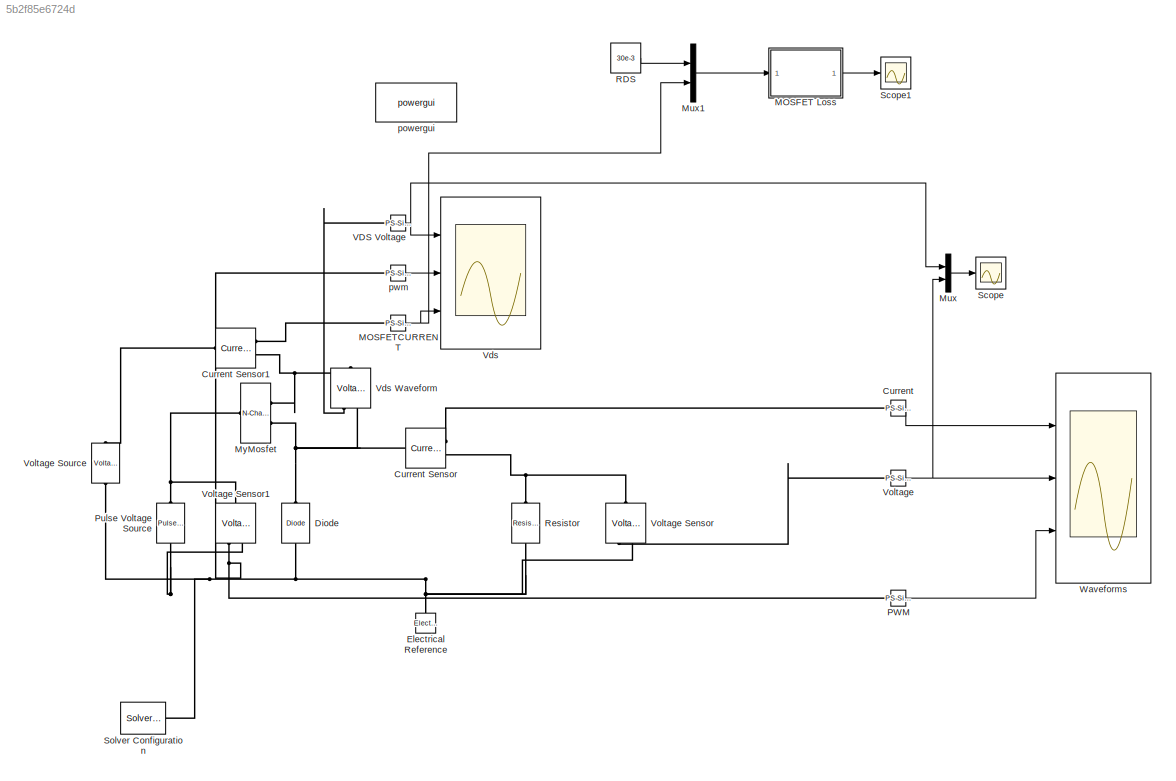
MODEL slx_5b2f85e6724d
KIND model
CONFIG AbsTol = auto
CONFIG EnableMultiTasking = off
CONFIG FixedStep = auto
CONFIG MaxStep = auto
CONFIG MinStep = auto
CONFIG RelTol = 1e-3
CONFIG SampleTimeConstraint = Unconstrained
CONFIG SolverName = VariableStepAuto
CONFIG StartTime = 0.0
CONFIG StopTime = 0.001
BLOCK [Reference] Current  REF=nesl_utility/PS-Simulink
Converter
  Ports = [0, 1, 0, 0, 0, 1]
  SourceBlock = nesl_utility/PS-Simulink\nConverter
  SourceProductBaseCode = PW,SS
  SourceType = PS-Simulink\nConverter
BLOCK [Reference] Current Sensor  REF=fl_lib/Electrical/Electrical Sensors/Current Sensor
  Ports = [0, 0, 0, 0, 0, 1, 2]
  SourceBlock = fl_lib/Electrical/Electrical Sensors/Current Sensor
  SourceProductBaseCode = SS
  SourceType = Current Sensor
BLOCK [Reference] Current Sensor1  REF=fl_lib/Electrical/Electrical Sensors/Current Sensor
  Ports = [0, 0, 0, 0, 0, 1, 2]
  SourceBlock = fl_lib/Electrical/Electrical Sensors/Current Sensor
  SourceProductBaseCode = SS
  SourceType = Current Sensor
BLOCK [Reference] Diode  REF=ee_lib/Semiconductors &
Converters/Diode
  NameLocation = right
  Ports = [0, 0, 0, 0, 0, 1, 1]
  SourceBlock = ee_lib/Semiconductors &\nConverters/Diode
  SourceProductBaseCode = PS
  SourceType = Diode
BLOCK [Reference] Electrical Reference  REF=fl_lib/Electrical/Electrical Elements/Electrical Reference
  NameLocation = right
  Ports = [0, 0, 0, 0, 0, 1]
  SourceBlock = fl_lib/Electrical/Electrical Elements/Electrical Reference
  SourceProductBaseCode = SS
  SourceType = Electrical Reference
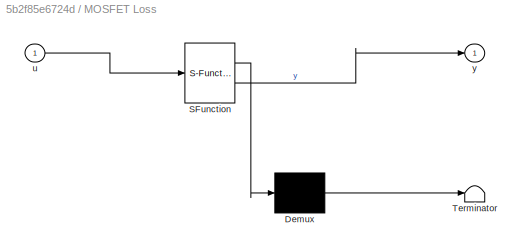
BLOCK [SubSystem] MOSFET Loss
  ErrorFcn = Stateflow.Translate.translate
  PermitHierarchicalResolution = ExplicitOnly
  Ports = [1, 1]
  RequestExecContextInheritance = off
  SFBlockType = MATLAB Function
  TreatAsAtomicUnit = on
BLOCK [Demux] MOSFET Loss/ Demux 
  Outputs = 1
  Ports = [1, 1]
BLOCK [S-Function] MOSFET Loss/ SFunction 
  EnableBusSupport = on
  FunctionName = sf_sfun
  PortCounts = [1 2]
  Ports = [1, 2]
  SFcnIsStateOwnerBlock = off
  SFunctionDeploymentMode = off
  Tag = Stateflow S-Function 2
BLOCK [Terminator] MOSFET Loss/ Terminator 
BLOCK [Inport] MOSFET Loss/u
BLOCK [Outport] MOSFET Loss/y
BLOCK [Reference] MOSFETCURRENT  REF=nesl_utility/PS-Simulink
Converter
  Ports = [0, 1, 0, 0, 0, 1]
  SourceBlock = nesl_utility/PS-Simulink\nConverter
  SourceProductBaseCode = PW,SS
  SourceType = PS-Simulink\nConverter
BLOCK [Mux] Mux
  DisplayOption = bar
  Inputs = 2
  Ports = [2, 1]
BLOCK [Mux] Mux1
  DisplayOption = bar
  Inputs = 2
  Ports = [2, 1]
BLOCK [Reference] MyMosfet  REF=ee_lib/Semiconductors &
Converters/N-Channel MOSFET
  Ports = [0, 0, 0, 0, 0, 1, 2]
  SourceBlock = ee_lib/Semiconductors &\nConverters/N-Channel MOSFET
  SourceProductBaseCode = PS
  SourceType = N-Channel MOSFET
BLOCK [Reference] PWM  REF=nesl_utility/PS-Simulink
Converter
  Ports = [0, 1, 0, 0, 0, 1]
  SourceBlock = nesl_utility/PS-Simulink\nConverter
  SourceProductBaseCode = PW,SS
  SourceType = PS-Simulink\nConverter
BLOCK [Reference] Pulse Voltage Source  REF=ee_lib/Additional
Components/SPICE Sources/Pulse Voltage Source
  NameLocation = right
  Ports = [0, 0, 0, 0, 0, 1, 1]
  SourceBlock = ee_lib/Additional\nComponents/SPICE Sources/Pulse Voltage Source
  SourceProductBaseCode = PS
  SourceType = Pulse Voltage Source
BLOCK [Constant] RDS
  Value = 30e-3
BLOCK [Reference] Resistor  REF=ee_lib/Passive/Resistor
  NameLocation = left
  Ports = [0, 0, 0, 0, 0, 1, 1]
  SourceBlock = ee_lib/Passive/Resistor
  SourceProductBaseCode = PS
  SourceType = Resistor
BLOCK [Scope] Scope
  Floating = off
  NumInputPorts = 1
  Ports = [1]
  ScopeSpecificationString = Simulink.scopes.TimeScopeBlockCfg('CurrentConfiguration', extmgr.ConfigurationSet(extmgr.Configuration('Core','General UI',true),extmgr.Configuration('Core','Source UI',true),extmgr.Configuration('Sources','WiredSimulink',true,'DataLoggingVariableName','ScopeData1'),extmgr.Configuration('Visuals','Time Domain',true,'SerializedDisplays',{struct('MinYLimReal','-3.15244','MaxYLimReal','23.15244','YLa...<+1841ch>
BLOCK [Scope] Scope1
  Floating = off
  NumInputPorts = 1
  Ports = [1]
  ScopeSpecificationString = Simulink.scopes.TimeScopeBlockCfg('CurrentConfiguration', extmgr.ConfigurationSet(extmgr.Configuration('Core','General UI',true),extmgr.Configuration('Core','Source UI',true),extmgr.Configuration('Sources','WiredSimulink',true,'DataLoggingVariableName','ScopeData2'),extmgr.Configuration('Visuals','Time Domain',true,'SerializedDisplays',{struct('MinYLimReal','-0.00496','MaxYLimReal','0.05867','YLab...<+1756ch>
BLOCK [Reference] Solver Configuration  REF=nesl_utility/Solver
Configuration
  Ports = [0, 0, 0, 0, 0, 0, 1]
  SourceBlock = nesl_utility/Solver\nConfiguration
  SourceProductBaseCode = PW,SS
  SourceType = Solver\nConfiguration
BLOCK [Reference] VDS  Voltage  REF=nesl_utility/PS-Simulink
Converter
  Ports = [0, 1, 0, 0, 0, 1]
  SourceBlock = nesl_utility/PS-Simulink\nConverter
  SourceProductBaseCode = PW,SS
  SourceType = PS-Simulink\nConverter
BLOCK [Scope] Vds
  Floating = off
  NumInputPorts = 3
  Ports = [3]
  ScopeSpecificationString = Simulink.scopes.TimeScopeBlockCfg('CurrentConfiguration', extmgr.ConfigurationSet(extmgr.Configuration('Core','General UI',true),extmgr.Configuration('Core','Source UI',true),extmgr.Configuration('Sources','WiredSimulink',true,'DataLoggingVariableName','ScopeData1'),extmgr.Configuration('Visuals','Time Domain',true,'SerializedDisplays',{struct('MinYLimReal','-2.50055','MaxYLimReal','22.50495','YLa...<+1925ch>
BLOCK [Reference] Vds Waveform  REF=fl_lib/Electrical/Electrical Sensors/Voltage Sensor
  NameLocation = right
  Ports = [0, 0, 0, 0, 0, 1, 2]
  SourceBlock = fl_lib/Electrical/Electrical Sensors/Voltage Sensor
  SourceProductBaseCode = SS
  SourceType = Voltage Sensor
BLOCK [Reference] Voltage  REF=nesl_utility/PS-Simulink
Converter
  Ports = [0, 1, 0, 0, 0, 1]
  SourceBlock = nesl_utility/PS-Simulink\nConverter
  SourceProductBaseCode = PW,SS
  SourceType = PS-Simulink\nConverter
BLOCK [Reference] Voltage Sensor  REF=fl_lib/Electrical/Electrical Sensors/Voltage Sensor
  NameLocation = right
  Ports = [0, 0, 0, 0, 0, 1, 2]
  SourceBlock = fl_lib/Electrical/Electrical Sensors/Voltage Sensor
  SourceProductBaseCode = SS
  SourceType = Voltage Sensor
BLOCK [Reference] Voltage Sensor1  REF=fl_lib/Electrical/Electrical Sensors/Voltage Sensor
  NameLocation = right
  Ports = [0, 0, 0, 0, 0, 1, 2]
  SourceBlock = fl_lib/Electrical/Electrical Sensors/Voltage Sensor
  SourceProductBaseCode = SS
  SourceType = Voltage Sensor
BLOCK [Reference] Voltage Source  REF=ee_lib/Sources/Voltage Source
  NameLocation = right
  Ports = [0, 0, 0, 0, 0, 1, 1]
  SourceBlock = ee_lib/Sources/Voltage Source
  SourceProductBaseCode = PS
  SourceType = Voltage Source
BLOCK [Scope] Waveforms
  Floating = off
  NumInputPorts = 3
  Ports = [3]
  ScopeSpecificationString = Simulink.scopes.TimeScopeBlockCfg('CurrentConfiguration', extmgr.ConfigurationSet(extmgr.Configuration('Core','General UI',true),extmgr.Configuration('Core','Source UI',true),extmgr.Configuration('Sources','WiredSimulink',true),extmgr.Configuration('Visuals','Time Domain',true,'SerializedDisplays',{struct('MinYLimReal','-1.27469','MaxYLimReal','6.25274','YLabelReal','','MinYLimMag','0.00000','MaxY...<+1878ch>
BLOCK [Reference] powergui  REF=spspowerguiLib/powergui
  Ports = []
  Priority = 1
  SourceBlock = spspowerguiLib/powergui
  SourceProductBaseCode = PS
  SourceType = PSB option menu block
BLOCK [Reference] pwm  REF=nesl_utility/PS-Simulink
Converter
  Ports = [0, 1, 0, 0, 0, 1]
  SourceBlock = nesl_utility/PS-Simulink\nConverter
  SourceProductBaseCode = PW,SS
  SourceType = PS-Simulink\nConverter
LINE Current:1 -> Waveforms:1
LINE MOSFET Loss:1 -> Scope1:1
NET MOSFETCURRENT:1 -> Mux1:2, Vds:3
LINE Mux1:1 -> MOSFET Loss:1
LINE Mux:1 -> Scope:1
LINE PWM:1 -> Waveforms:3
LINE RDS:1 -> Mux1:1
NET VDS  Voltage:1 -> Mux:1, Vds:1
NET Voltage:1 -> Mux:2, Waveforms:2
LINE pwm:1 -> Vds:2
PLINE Current Sensor1:LConn1 -- Voltage Source:LConn1
PLINE Current Sensor1:RConn1 -- MOSFETCURRENT:LConn1
PNET net1: Current Sensor1:RConn2 -- MyMosfet:RConn1 -- Vds Waveform:LConn1
PNET net2: Current Sensor:LConn1 -- Diode:RConn1 -- MyMosfet:RConn2 -- Vds Waveform:RConn2
PLINE Current Sensor:RConn1 -- Current:LConn1
PNET net3: Current Sensor:RConn2 -- Resistor:LConn1 -- Voltage Sensor:LConn1
PNET net4: Diode:LConn1 -- Electrical Reference:LConn1 -- Pulse Voltage Source:RConn1 -- Resistor:RConn1 -- Solver Configuration:RConn1 -- Voltage Sensor1:RConn2 -- Voltage Sensor:RConn2 -- Voltage Source:RConn1
PNET net5: MyMosfet:LConn1 -- Pulse Voltage Source:LConn1 -- Voltage Sensor1:LConn1
PNET net6: PWM:LConn1 -- Voltage Sensor1:RConn1 -- pwm:LConn1
PLINE VDS  Voltage:LConn1 -- Vds Waveform:RConn1
PLINE Voltage Sensor:RConn1 -- Voltage:LConn1
note: NET lines group one-source signal fan-out (src -> all destinations, sorted); 1:1 wires keep LINE; PNET lines group multi-terminal physical nets as a canonical sorted terminal list (undirected conserving connections); 2-terminal nets keep the pairwise PLINE form
CHART MOSFET Loss states=1 transitions=1
  STATE_LABEL 'eML_blk_kernel()'
  STATE_LABEL 'SCRIPT:\nfunction y = fcn(u)\n\nval = u(1) * u(2);\n\ny = val;\n'
CHART  states=0 transitions=0
